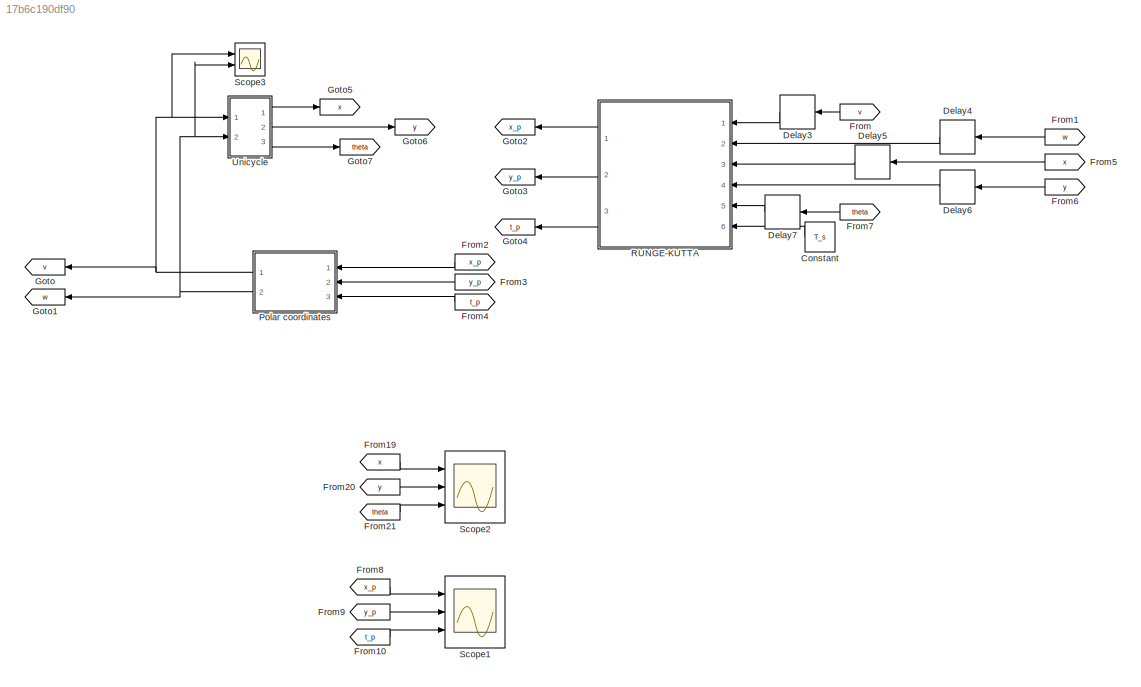
MODEL slx_17b6c190df90
KIND model
CONFIG AbsTol = auto
CONFIG EnableMultiTasking = off
CONFIG FixedStep = auto
CONFIG InitFcn = T_s=0.01
CONFIG MaxStep = auto
CONFIG MinStep = auto
CONFIG RelTol = 1e-3
CONFIG SampleTimeConstraint = Unconstrained
CONFIG Solver = VariableStepAuto
CONFIG SolverName = VariableStepAuto
CONFIG StartTime = 0.0
CONFIG StopTime = 10.0
BLOCK [Constant] Constant
  NameLocation = top
  Value = T_s
BLOCK [Delay] Delay3
  DelayLength = 1
  InitialCondition = 0
  InputPortMap = u0
  NameLocation = top
  Ports = [1, 1]
  SampleTime = T_s
BLOCK [Delay] Delay4
  DelayLength = 1
  InitialCondition = 0
  InputPortMap = u0
  NameLocation = top
  Ports = [1, 1]
  SampleTime = T_s
BLOCK [Delay] Delay5
  DelayLength = 1
  InitialCondition = 5
  InputPortMap = u0
  NameLocation = top
  Ports = [1, 1]
  SampleTime = T_s
BLOCK [Delay] Delay6
  DelayLength = 1
  InitialCondition = 2
  InputPortMap = u0
  NameLocation = top
  Ports = [1, 1]
  SampleTime = T_s
BLOCK [Delay] Delay7
  DelayLength = 1
  InitialCondition = pi/2
  InputPortMap = u0
  NameLocation = top
  Ports = [1, 1]
  SampleTime = T_s
BLOCK [From] From
  GotoTag = v
  NameLocation = top
BLOCK [From] From1
  GotoTag = w
  NameLocation = top
BLOCK [From] From10
  GotoTag = t_p
BLOCK [From] From19
  GotoTag = x
BLOCK [From] From2
  GotoTag = x_p
  NameLocation = top
BLOCK [From] From20
  GotoTag = y
BLOCK [From] From21
  GotoTag = theta
BLOCK [From] From3
  GotoTag = y_p
  NameLocation = top
BLOCK [From] From4
  GotoTag = t_p
  NameLocation = top
BLOCK [From] From5
  GotoTag = x
  NameLocation = top
BLOCK [From] From6
  GotoTag = y
  NameLocation = left
BLOCK [From] From7
  GotoTag = theta
  NameLocation = top
BLOCK [From] From8
  GotoTag = x_p
BLOCK [From] From9
  GotoTag = y_p
BLOCK [Goto] Goto
  GotoTag = v
  NameLocation = top
BLOCK [Goto] Goto1
  GotoTag = w
  NameLocation = top
BLOCK [Goto] Goto2
  GotoTag = x_p
BLOCK [Goto] Goto3
  GotoTag = y_p
BLOCK [Goto] Goto4
  GotoTag = t_p
BLOCK [Goto] Goto5
  GotoTag = x
BLOCK [Goto] Goto6
  GotoTag = y
BLOCK [Goto] Goto7
  GotoTag = theta
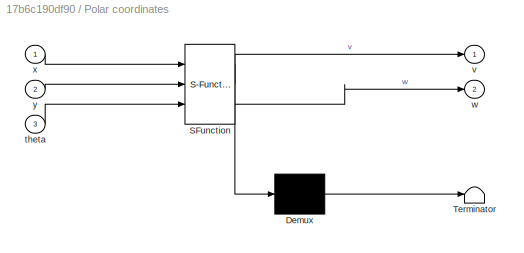
BLOCK [SubSystem] Polar coordinates
  ErrorFcn = Stateflow.Translate.translate
  NameLocation = top
  PermitHierarchicalResolution = ExplicitOnly
  Ports = [3, 2]
  RequestExecContextInheritance = off
  SFBlockType = MATLAB Function
  TreatAsAtomicUnit = on
BLOCK [Demux] Polar coordinates/ Demux 
  Outputs = 1
  Ports = [1, 1]
BLOCK [S-Function] Polar coordinates/ SFunction 
  EnableBusSupport = on
  FunctionName = sf_sfun
  PortCounts = [3 3]
  Ports = [3, 3]
  SFcnIsStateOwnerBlock = off
  SFunctionDeploymentMode = off
  Tag = Stateflow S-Function 5
BLOCK [Terminator] Polar coordinates/ Terminator 
BLOCK [Inport] Polar coordinates/theta
  Port = 3
BLOCK [Outport] Polar coordinates/v
BLOCK [Outport] Polar coordinates/w
  Port = 2
BLOCK [Inport] Polar coordinates/x
BLOCK [Inport] Polar coordinates/y
  Port = 2
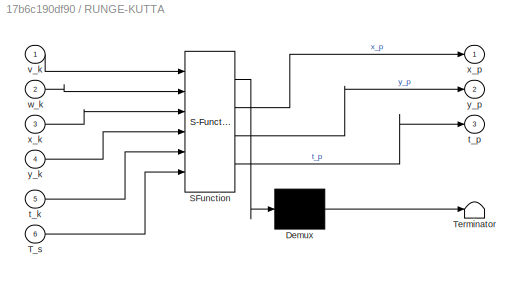
BLOCK [SubSystem] RUNGE-KUTTA
  ErrorFcn = Stateflow.Translate.translate
  NameLocation = top
  PermitHierarchicalResolution = ExplicitOnly
  Ports = [6, 3]
  RequestExecContextInheritance = off
  SFBlockType = MATLAB Function
  SystemSampleTime = T_s
  TreatAsAtomicUnit = on
BLOCK [Demux] RUNGE-KUTTA/ Demux 
  Outputs = 1
  Ports = [1, 1]
BLOCK [S-Function] RUNGE-KUTTA/ SFunction 
  EnableBusSupport = on
  FunctionName = sf_sfun
  PortCounts = [6 4]
  Ports = [6, 4]
  SFcnIsStateOwnerBlock = off
  SFunctionDeploymentMode = off
  Tag = Stateflow S-Function 3
BLOCK [Terminator] RUNGE-KUTTA/ Terminator 
BLOCK [Inport] RUNGE-KUTTA/T_s
  Port = 6
BLOCK [Inport] RUNGE-KUTTA/t_k
  Port = 5
BLOCK [Outport] RUNGE-KUTTA/t_p
  Port = 3
BLOCK [Inport] RUNGE-KUTTA/v_k
BLOCK [Inport] RUNGE-KUTTA/w_k
  Port = 2
BLOCK [Inport] RUNGE-KUTTA/x_k
  Port = 3
BLOCK [Outport] RUNGE-KUTTA/x_p
BLOCK [Inport] RUNGE-KUTTA/y_k
  Port = 4
BLOCK [Outport] RUNGE-KUTTA/y_p
  Port = 2
BLOCK [Scope] Scope1
  Floating = off
  NumInputPorts = 3
  Ports = [3]
  ScopeSpecificationString = Simulink.scopes.TimeScopeBlockCfg('CurrentConfiguration', extmgr.ConfigurationSet(extmgr.Configuration('Core','General UI',true,'FigureColor',[1 1 1]),extmgr.Configuration('Core','Source UI',true),extmgr.Configuration('Sources','WiredSimulink',true),extmgr.Configuration('Visuals','Time Domain',true,'SerializedDisplays',{struct('MinYLimReal','-0.65379','MaxYLimReal','5.64175','YLabelReal','','MinYL...<+2817ch>
BLOCK [Scope] Scope2
  Floating = off
  NumInputPorts = 3
  Ports = [3]
  ScopeSpecificationString = Simulink.scopes.TimeScopeBlockCfg('CurrentConfiguration', extmgr.ConfigurationSet(extmgr.Configuration('Core','General UI',true,'FigureColor',[1 1 1]),extmgr.Configuration('Core','Source UI',true),extmgr.Configuration('Sources','WiredSimulink',true,'DataLoggingVariableName','ScopeData1'),extmgr.Configuration('Visuals','Time Domain',true,'SerializedDisplays',{struct('MinYLimReal','-0.65379','MaxYLi...<+2833ch>
BLOCK [Scope] Scope3
  Floating = off
  NumInputPorts = 2
  Ports = [2]
  ScopeSpecificationString = Simulink.scopes.TimeScopeBlockCfg('CurrentConfiguration', extmgr.ConfigurationSet(extmgr.Configuration('Core','General UI',true,'FigureColor',[1 1 1]),extmgr.Configuration('Core','Source UI',true),extmgr.Configuration('Sources','WiredSimulink',true,'DataLoggingVariableName','ScopeData4'),extmgr.Configuration('Visuals','Time Domain',true,'SerializedDisplays',{struct('MinYLimReal','-5.96558','MaxYLi...<+1508ch>
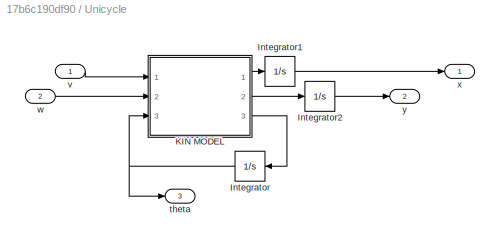
BLOCK [SubSystem] Unicycle
  Ports = [2, 3]
  RequestExecContextInheritance = off
BLOCK [Integrator] Unicycle/Integrator
  InitialCondition = pi/2
  NameLocation = top
  Ports = [1, 1]
BLOCK [Integrator] Unicycle/Integrator1
  InitialCondition = 5
  Ports = [1, 1]
BLOCK [Integrator] Unicycle/Integrator2
  InitialCondition = 2
  Ports = [1, 1]
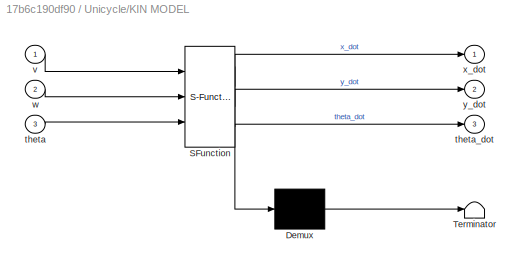
BLOCK [SubSystem] Unicycle/KIN MODEL
  ErrorFcn = Stateflow.Translate.translate
  PermitHierarchicalResolution = ExplicitOnly
  Ports = [3, 3]
  RequestExecContextInheritance = off
  SFBlockType = MATLAB Function
  TreatAsAtomicUnit = on
BLOCK [Demux] Unicycle/KIN MODEL/ Demux 
  Outputs = 1
  Ports = [1, 1]
BLOCK [S-Function] Unicycle/KIN MODEL/ SFunction 
  EnableBusSupport = on
  FunctionName = sf_sfun
  PortCounts = [3 4]
  Ports = [3, 4]
  SFcnIsStateOwnerBlock = off
  SFunctionDeploymentMode = off
  Tag = Stateflow S-Function 2
BLOCK [Terminator] Unicycle/KIN MODEL/ Terminator 
BLOCK [Inport] Unicycle/KIN MODEL/theta
  Port = 3
BLOCK [Outport] Unicycle/KIN MODEL/theta_dot
  Port = 3
BLOCK [Inport] Unicycle/KIN MODEL/v
BLOCK [Inport] Unicycle/KIN MODEL/w
  Port = 2
BLOCK [Outport] Unicycle/KIN MODEL/x_dot
BLOCK [Outport] Unicycle/KIN MODEL/y_dot
  Port = 2
BLOCK [Outport] Unicycle/theta
  Port = 3
BLOCK [Inport] Unicycle/v
BLOCK [Inport] Unicycle/w
  Port = 2
BLOCK [Outport] Unicycle/x
BLOCK [Outport] Unicycle/y
  Port = 2
LINE Constant:1 -> RUNGE-KUTTA:6
LINE Delay3:1 -> RUNGE-KUTTA:1
LINE Delay4:1 -> RUNGE-KUTTA:2
LINE Delay5:1 -> RUNGE-KUTTA:3
LINE Delay6:1 -> RUNGE-KUTTA:4
LINE Delay7:1 -> RUNGE-KUTTA:5
LINE From10:1 -> Scope1:3
LINE From19:1 -> Scope2:1
LINE From1:1 -> Delay4:1
LINE From20:1 -> Scope2:2
LINE From21:1 -> Scope2:3
LINE From2:1 -> Polar coordinates:1
LINE From3:1 -> Polar coordinates:2
LINE From4:1 -> Polar coordinates:3
LINE From5:1 -> Delay5:1
LINE From6:1 -> Delay6:1
LINE From7:1 -> Delay7:1
LINE From8:1 -> Scope1:1
LINE From9:1 -> Scope1:2
LINE From:1 -> Delay3:1
NET Polar coordinates:1 -> Goto:1, Scope3:1, Unicycle:1
NET Polar coordinates:2 -> Goto1:1, Scope3:2, Unicycle:2
LINE RUNGE-KUTTA:1 -> Goto2:1
LINE RUNGE-KUTTA:2 -> Goto3:1
LINE RUNGE-KUTTA:3 -> Goto4:1
LINE Unicycle/Integrator1:1 -> Unicycle/x:1
LINE Unicycle/Integrator2:1 -> Unicycle/y:1
NET Unicycle/Integrator:1 -> Unicycle/KIN MODEL:3, Unicycle/theta:1
LINE Unicycle/KIN MODEL:1 -> Unicycle/Integrator1:1
LINE Unicycle/KIN MODEL:2 -> Unicycle/Integrator2:1
LINE Unicycle/KIN MODEL:3 -> Unicycle/Integrator:1
LINE Unicycle/v:1 -> Unicycle/KIN MODEL:1
LINE Unicycle/w:1 -> Unicycle/KIN MODEL:2
LINE Unicycle:1 -> Goto5:1
LINE Unicycle:2 -> Goto6:1
LINE Unicycle:3 -> Goto7:1
note: NET lines group one-source signal fan-out (src -> all destinations, sorted); 1:1 wires keep LINE
CHART Unicycle/KIN MODEL states=1 transitions=1
  STATE_LABEL 'eML_blk_kernel()'
  STATE_LABEL 'SCRIPT:\nfunction [x_dot,y_dot,theta_dot] = fcn(v,w,theta)\nx_dot=cos(theta)*v\ny_dot=sin(theta)*v\ntheta_dot=w;\n'
CHART RUNGE-KUTTA states=1 transitions=1
  STATE_LABEL 'eML_blk_kernel()'
  STATE_LABEL 'SCRIPT:\nfunction [x_p,y_p,t_p] = fcn(v_k,w_k,x_k,y_k,t_k,T_s)\n\nx_p=x_k+v_k*T_s*cos(t_k+0.5*w_k*T_s);\ny_p=y_k+v_k*T_s*sin(t_k+0.5*w_k*T_s);\nt_p=t_k+w_k*T_s;\n'
CHART Polar coordinates states=1 transitions=1
  STATE_LABEL 'eML_blk_kernel()'
  STATE_LABEL 'SCRIPT:\nfunction [v,w] = fcn(x,y,theta)\nrho=sqrt(x^2+y^2);\ngamma=atan2(y,x)-theta+pi;\ndelta=gamma+theta;\n\nk_1=2;\nk_2=7;\nk_3=1;\nv=k_1*rho*cos(gamma);\nw=k_2*gamma+k_1*sin(gamma)*cos(gamma)*(1+k_3*delta/gamma);\n\n'
CHART  states=0 transitions=0
CHART  states=0 transitions=0
CHART  states=0 transitions=0
